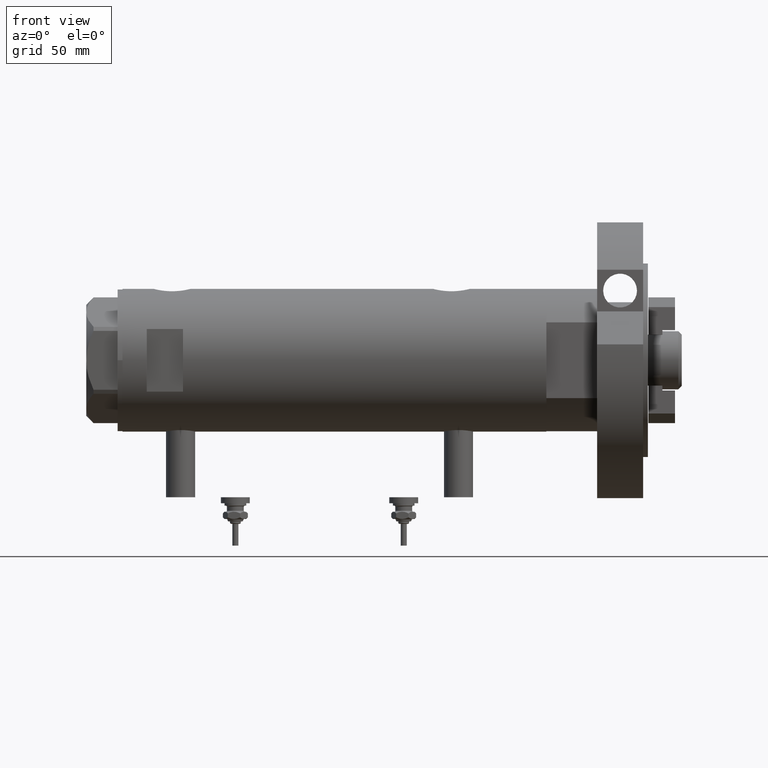
[diagram: clean part render]
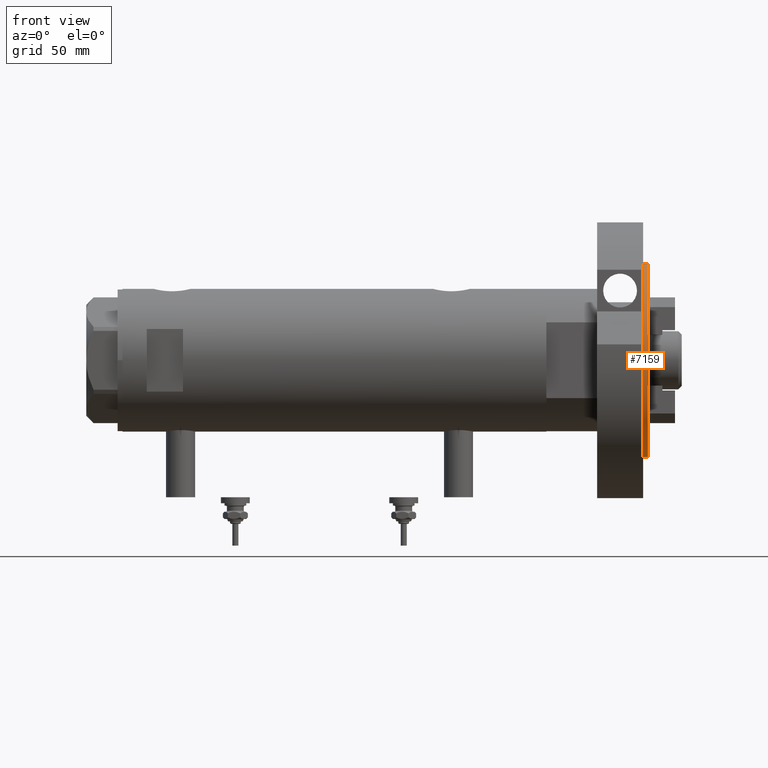
[diagram: same view with one face highlighted and labeled with its STEP entity id]
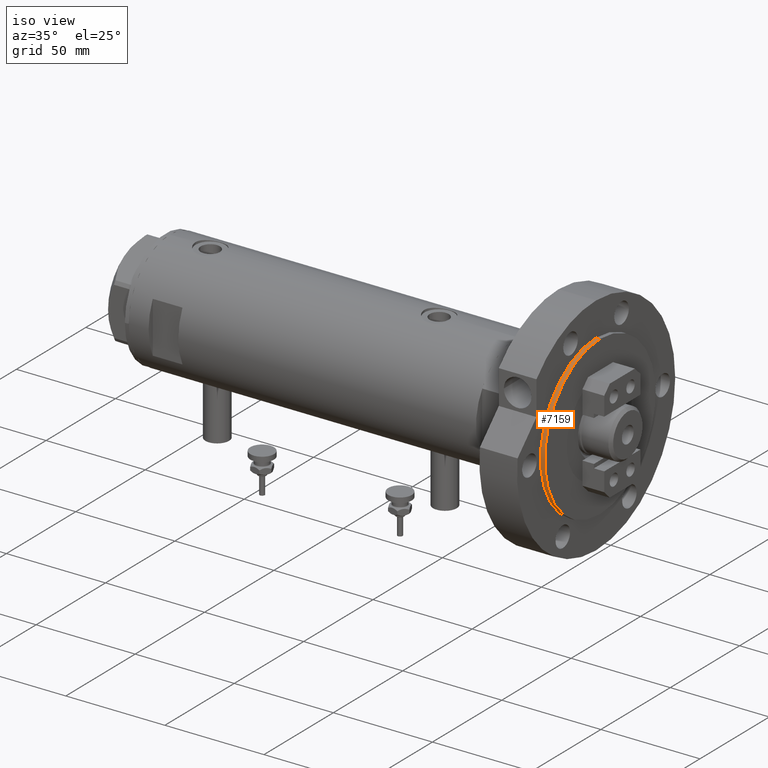
[diagram: same view with one face highlighted and labeled with its STEP entity id]
A machine part, front view. The second image highlights one B-rep face of the part: STEP entity #7159.
A second angle (iso view) of the same face is appended — the face is thin or edge-on in the first view.
In plain terms, the highlighted cylindrical surface (partial cylindrical patch) has radius 40 mm, axis along (-1, -0, 0).
Its self-contained STEP definition (entity closure, byte-faithful):
#332 = FACE_OUTER_BOUND ( 'NONE', #3487, .T. ) ;
#365 = VERTEX_POINT ( 'NONE', #2374 ) ;
#593 = VERTEX_POINT ( 'NONE', #8261 ) ;
#598 = DIRECTION ( 'NONE',  ( 1.000000000000000000, 0.000000000000000000, 0.000000000000000000 ) ) ;
#766 = CARTESIAN_POINT ( 'NONE',  ( -40.00000000000000000, 0.000000000000000000, 19.00000000000000000 ) ) ;
#870 = CARTESIAN_POINT ( 'NONE',  ( 40.00000000000000000, 4.898587196589413026E-15, 20.99999999999999645 ) ) ;
#1555 = DIRECTION ( 'NONE',  ( -0.000000000000000000, -0.000000000000000000, -1.000000000000000000 ) ) ;
#1743 = LINE ( 'NONE', #2332, #5757 ) ;
#1777 = DIRECTION ( 'NONE',  ( 1.000000000000000000, 0.000000000000000000, 0.000000000000000000 ) ) ;
#2332 = CARTESIAN_POINT ( 'NONE',  ( -40.00000000000000000, 0.000000000000000000, 20.99999999999999645 ) ) ;
#2374 = CARTESIAN_POINT ( 'NONE',  ( -40.00000000000000000, 0.000000000000000000, 20.99999999999999645 ) ) ;
#2448 = EDGE_CURVE ( 'NONE', #3029, #365, #3077, .T. ) ;
#2526 = EDGE_CURVE ( 'NONE', #3029, #593, #7248, .T. ) ;
#2890 = ORIENTED_EDGE ( 'NONE', *, *, #2448, .F. ) ;
#2938 = AXIS2_PLACEMENT_3D ( 'NONE', #6740, #7478, #8008 ) ;
#2946 = CYLINDRICAL_SURFACE ( 'NONE', #2938, 40.00000000000000000 ) ;
#2972 = ORIENTED_EDGE ( 'NONE', *, *, #4350, .F. ) ;
#3029 = VERTEX_POINT ( 'NONE', #6589 ) ;
#3077 = CIRCLE ( 'NONE', #6797, 40.00000000000000000 ) ;
#3487 = EDGE_LOOP ( 'NONE', ( #2890, #7078, #6901, #2972 ) ) ;
#3628 = DIRECTION ( 'NONE',  ( -0.000000000000000000, -0.000000000000000000, -1.000000000000000000 ) ) ;
#3769 = DIRECTION ( 'NONE',  ( 0.000000000000000000, 0.000000000000000000, 1.000000000000000000 ) ) ;
#4030 = AXIS2_PLACEMENT_3D ( 'NONE', #4130, #8126, #1777 ) ;
#4125 = VECTOR ( 'NONE', #1555, 1000.000000000000000 ) ;
#4130 = CARTESIAN_POINT ( 'NONE',  ( 0.000000000000000000, 0.000000000000000000, 19.00000000000000000 ) ) ;
#4350 = EDGE_CURVE ( 'NONE', #365, #5171, #1743, .T. ) ;
#4771 = EDGE_CURVE ( 'NONE', #593, #5171, #8059, .T. ) ;
#5171 = VERTEX_POINT ( 'NONE', #766 ) ;
#5557 = CARTESIAN_POINT ( 'NONE',  ( 0.000000000000000000, 0.000000000000000000, 20.99999999999999645 ) ) ;
#5757 = VECTOR ( 'NONE', #3628, 1000.000000000000000 ) ;
#6589 = CARTESIAN_POINT ( 'NONE',  ( 40.00000000000000000, 4.898587196589413026E-15, 20.99999999999999645 ) ) ;
#6740 = CARTESIAN_POINT ( 'NONE',  ( 0.000000000000000000, 0.000000000000000000, 20.99999999999999645 ) ) ;
#6797 = AXIS2_PLACEMENT_3D ( 'NONE', #5557, #3769, #598 ) ;
#6901 = ORIENTED_EDGE ( 'NONE', *, *, #4771, .T. ) ;
#7078 = ORIENTED_EDGE ( 'NONE', *, *, #2526, .T. ) ;
#7159 = ADVANCED_FACE ( 'NONE', ( #332 ), #2946, .T. ) ;
#7248 = LINE ( 'NONE', #870, #4125 ) ;
#7478 = DIRECTION ( 'NONE',  ( -0.000000000000000000, -0.000000000000000000, -1.000000000000000000 ) ) ;
#8008 = DIRECTION ( 'NONE',  ( -1.000000000000000000, 0.000000000000000000, 0.000000000000000000 ) ) ;
#8059 = CIRCLE ( 'NONE', #4030, 40.00000000000000000 ) ;
#8126 = DIRECTION ( 'NONE',  ( 0.000000000000000000, 0.000000000000000000, 1.000000000000000000 ) ) ;
#8261 = CARTESIAN_POINT ( 'NONE',  ( 40.00000000000000000, 4.898587196589413026E-15, 19.00000000000000000 ) ) ;